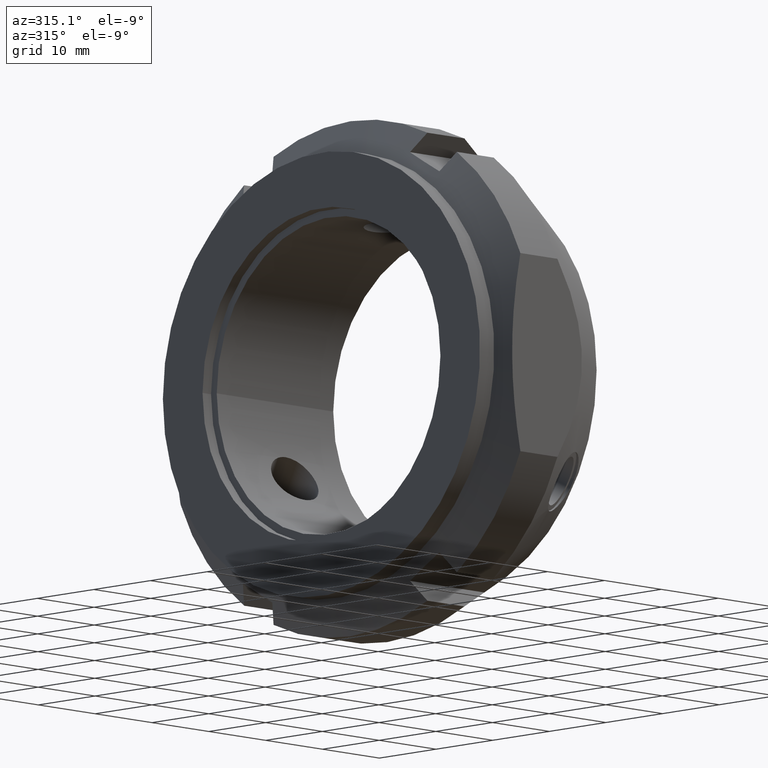
[diagram: clean part render]
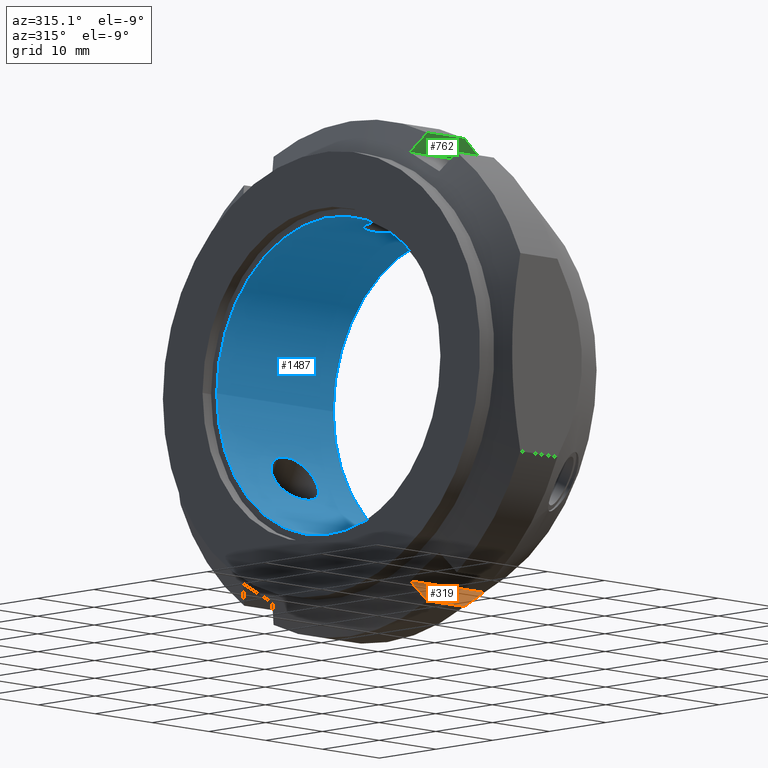
[diagram: same view with three faces highlighted in distinct colors, each labeled with its STEP entity id]
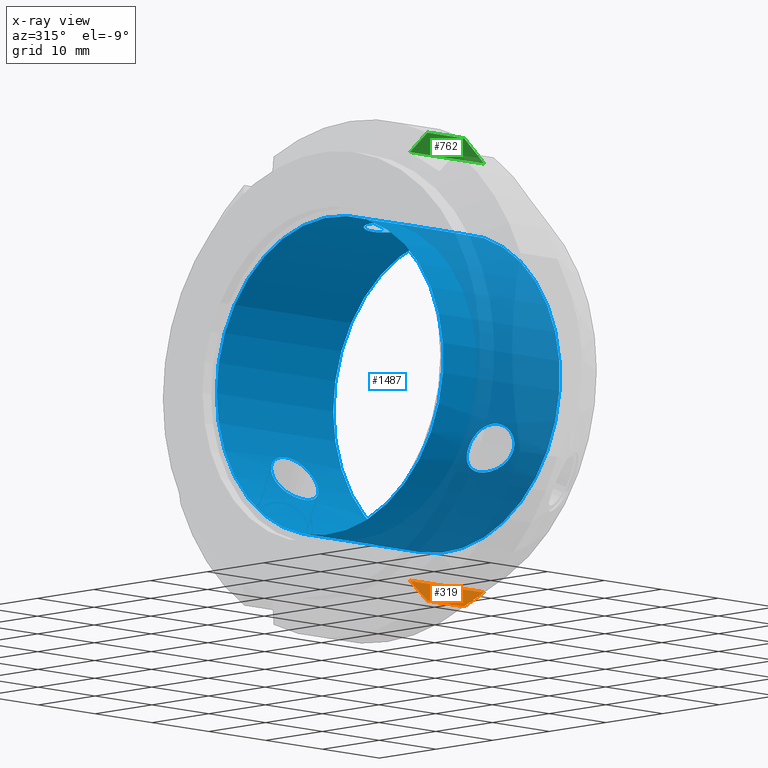
[diagram: x-ray of the same camera — body ghosted, the three highlighted faces saturated]
A machine part, auxiliary view with three faces highlighted in distinct colors.
The next image is the same camera in x-ray (body ghosted, the three faces saturated) — at least one of them is partly hidden behind the body in this view.
Their STEP definitions:

[orange] entity #319 — the highlighted planar face has unit normal (0, -0.866, 0.5).
#266=CARTESIAN_POINT('',(0.0,-12.151923788646686,-27.047749411640929));
#267=DIRECTION('',(0.0,-0.866025403784441,0.499999999999996));
#268=DIRECTION('',(0.0,-0.499999999999996,-0.866025403784441));
#269=AXIS2_PLACEMENT_3D('',#266,#267,#268);
#270=PLANE('',#269);
#271=CARTESIAN_POINT('',(5.098076211353304,-13.582544913931081,-29.525657887014884));
#272=VERTEX_POINT('',#271);
#273=CARTESIAN_POINT('',(3.453869250916735,-12.151923788646684,-27.047749411640929));
#274=VERTEX_POINT('',#273);
#275=CARTESIAN_POINT('',(5.098076211353303,-13.582544913931082,-29.525657887014887));
#276=CARTESIAN_POINT('',(4.237948321633014,-12.83445837849801,-28.229933999186624));
#277=CARTESIAN_POINT('',(3.453869250916735,-12.151923788646684,-27.047749411640929));
#285=(BOUNDED_CURVE()B_SPLINE_CURVE(2,(#275,#276,#277),.UNSPECIFIED.,.F.,.U.)B_SPLINE_CURVE_WITH_KNOTS((3,3),(0.0,0.319128761341054),.UNSPECIFIED.)CURVE()GEOMETRIC_REPRESENTATION_ITEM()RATIONAL_B_SPLINE_CURVE((1.0,1.001854182815459,1.001584615140668))REPRESENTATION_ITEM(''));
#286=EDGE_CURVE('',#272,#274,#285,.T.);
#287=ORIENTED_EDGE('',*,*,#286,.F.);
#288=CARTESIAN_POINT('',(11.607695154586731,-13.582544913931084,-29.525657887014884));
#289=VERTEX_POINT('',#288);
#290=CARTESIAN_POINT('',(11.607695154586729,-13.582544913931081,-29.525657887014884));
#291=DIRECTION('',(-1.0,0.0,0.0));
#292=VECTOR('',#291,6.509618943233425);
#293=LINE('',#290,#292);
#294=EDGE_CURVE('',#289,#272,#293,.T.);
#295=ORIENTED_EDGE('',*,*,#294,.F.);
#296=CARTESIAN_POINT('',(16.540316035896449,-12.151923788646686,-27.047749411640929));
#297=VERTEX_POINT('',#296);
#298=CARTESIAN_POINT('',(16.540316035896449,-12.151923788646684,-27.047749411640929));
#299=CARTESIAN_POINT('',(14.188078820549956,-12.834458379425392,-28.229934000792891));
#300=CARTESIAN_POINT('',(11.607695154586722,-13.582544913931088,-29.525657887014887));
#308=(BOUNDED_CURVE()B_SPLINE_CURVE(2,(#298,#299,#300),.UNSPECIFIED.,.F.,.U.)B_SPLINE_CURVE_WITH_KNOTS((3,3),(0.0,0.570240793537052),.UNSPECIFIED.)CURVE()GEOMETRIC_REPRESENTATION_ITEM()RATIONAL_B_SPLINE_CURVE((1.0,1.001061348164373,1.0))REPRESENTATION_ITEM(''));
#309=EDGE_CURVE('',#297,#289,#308,.T.);
#310=ORIENTED_EDGE('',*,*,#309,.F.);
#311=CARTESIAN_POINT('',(3.453869250916735,-12.151923788646686,-27.047749411640929));
#312=DIRECTION('',(1.0,0.0,0.0));
#313=VECTOR('',#312,13.086446784979714);
#314=LINE('',#311,#313);
#315=EDGE_CURVE('',#274,#297,#314,.T.);
#316=ORIENTED_EDGE('',*,*,#315,.F.);
#317=EDGE_LOOP('',(#287,#295,#310,#316));
#318=FACE_OUTER_BOUND('',#317,.T.);
#319=ADVANCED_FACE('',(#318),#270,.T.);

[blue] entity #1487 — the highlighted cylindrical surface (bore or boss wall) has radius 20 mm, axis along (1, 0, 0).
#1090=CARTESIAN_POINT('',(12.386459030357074,18.741438545535594,-6.982727349962374));
#1091=VERTEX_POINT('',#1090);
#1092=CARTESIAN_POINT('',(12.386459030357074,18.741438545535594,-6.982727349962374));
#1093=CARTESIAN_POINT('',(12.889296638505527,18.741438545535594,-6.982727349962374));
#1094=CARTESIAN_POINT('',(13.428609159729724,18.710219929245262,-7.068360306556945));
#1095=CARTESIAN_POINT('',(14.436777334736345,18.576621437185292,-7.412366916709265));
#1096=CARTESIAN_POINT('',(14.905761719550492,18.473745060439455,-7.670170053745653));
#1097=CARTESIAN_POINT('',(15.595693902359473,18.230825661591059,-8.228813412212139));
#1098=CARTESIAN_POINT('',(15.884711588988987,18.085031331994077,-8.54906202516019));
#1099=CARTESIAN_POINT('',(16.279814947180789,17.734785469584303,-9.253767084320288));
#1100=CARTESIAN_POINT('',(16.384652623095967,17.529279083858125,-9.638398006703303));
#1101=CARTESIAN_POINT('',(16.384652623095967,17.11173706751941,-10.361601993296714));
#1102=CARTESIAN_POINT('',(16.279814947180792,16.881390110517767,-10.731891205167013));
#1103=CARTESIAN_POINT('',(15.884711588988992,16.446220558314593,-11.387565549164318));
#1104=CARTESIAN_POINT('',(15.595693902359473,16.241774288773343,-11.673951448797052));
#1105=CARTESIAN_POINT('',(14.905761719550492,15.879434648110102,-12.163647498505048));
#1106=CARTESIAN_POINT('',(14.436777334736345,15.70760877063419,-12.381642622734439));
#1107=CARTESIAN_POINT('',(13.428609159729724,15.476489553202494,-12.669345615841825));
#1108=CARTESIAN_POINT('',(12.889296638505527,15.417938545535591,-12.739198208917539));
#1109=CARTESIAN_POINT('',(11.915817552964199,15.417938545535591,-12.739198208917539));
#1110=CARTESIAN_POINT('',(11.409231440393901,15.469833265094579,-12.677349219346263));
#1111=CARTESIAN_POINT('',(10.472206911972906,15.690359184847825,-12.403368602968037));
#1112=CARTESIAN_POINT('',(10.041982230447708,15.858811334325114,-12.190362647587133));
#1113=CARTESIAN_POINT('',(9.405921868370474,16.224982466791143,-11.697537127806134));
#1114=CARTESIAN_POINT('',(9.144193553685675,16.437294748474159,-11.400740296121938));
#1115=CARTESIAN_POINT('',(8.796011360560303,16.882054824168357,-10.731158493996533));
#1116=CARTESIAN_POINT('',(8.709358144489075,17.11380758316302,-10.358015755004109));
#1117=CARTESIAN_POINT('',(8.709358144489075,17.527208568214508,-9.641984244995911));
#1118=CARTESIAN_POINT('',(8.7960113605603,17.734483279922323,-9.254709098813184));
#1119=CARTESIAN_POINT('',(9.144193553685673,18.091978092627588,-8.534744673610215));
#1120=CARTESIAN_POINT('',(9.405921868370474,18.242855547787332,-8.202478428295194));
#1121=CARTESIAN_POINT('',(10.04198223044771,18.486569401317933,-7.638952165556598));
#1122=CARTESIAN_POINT('',(10.472206911972906,18.586811895096524,-7.386565347096715));
#1123=CARTESIAN_POINT('',(11.409231440393903,18.713823109147963,-7.058593990208363));
#1124=CARTESIAN_POINT('',(11.915817552964201,18.741438545535594,-6.982727349962374));
#1125=CARTESIAN_POINT('',(12.386459030357074,18.741438545535594,-6.982727349962374));
#1126=B_SPLINE_CURVE_WITH_KNOTS('',3,(#1092,#1093,#1094,#1095,#1096,#1097,#1098,#1099,#1100,#1101,#1102,#1103,#1104,#1105,#1106,#1107,#1108,#1109,#1110,#1111,#1112,#1113,#1114,#1115,#1116,#1117,#1118,#1119,#1120,#1121,#1122,#1123,#1124,#1125),.UNSPECIFIED.,.T.,.U.,(4,2,2,2,2,2,2,2,2,2,2,2,2,2,2,2,4),(0.0,0.150851282444537,0.301702564889073,0.426965169790688,0.552227774692303,0.677490379593918,0.802752984495533,0.953604266940069,1.104455549384606,1.245647992602468,1.38684043582033,1.510860731335776,1.634881026851223,1.758901322366669,1.882921617882115,2.024114061099977,2.165306504317839),.UNSPECIFIED.);
#1127=EDGE_CURVE('',#1091,#1091,#1126,.T.);
#1180=CARTESIAN_POINT('',(12.386459030357075,-15.417938545535602,-12.739198208917523));
#1181=VERTEX_POINT('',#1180);
#1182=CARTESIAN_POINT('',(12.386459030357075,-15.417938545535602,-12.739198208917523));
#1183=CARTESIAN_POINT('',(12.866973002792324,-15.417938545535602,-12.739198208917523));
#1184=CARTESIAN_POINT('',(13.383488680569851,-15.471450979508552,-12.675289476627398));
#1185=CARTESIAN_POINT('',(14.354800634682485,-15.684163737489463,-12.411114642057623));
#1186=CARTESIAN_POINT('',(14.809684674915253,-15.842748468261799,-12.210675948392604));
#1187=CARTESIAN_POINT('',(15.520434202872146,-16.192871789149358,-11.741770543603867));
#1188=CARTESIAN_POINT('',(15.835654181347179,-16.4043150338386,-11.448383554382961));
#1189=CARTESIAN_POINT('',(16.268414751051761,-16.85832403295084,-10.768655904385989));
#1190=CARTESIAN_POINT('',(16.384652623095967,-17.100432706439079,-10.381181721034952));
#1191=CARTESIAN_POINT('',(16.384652623095967,-17.54058344493847,-9.618818278965041));
#1192=CARTESIAN_POINT('',(16.268414751051765,-17.755091594286977,-9.215408925572156));
#1193=CARTESIAN_POINT('',(15.835654181347179,-18.116748507282935,-8.48236177379572));
#1194=CARTESIAN_POINT('',(15.520434202872146,-18.265107470743452,-8.152553057825775));
#1195=CARTESIAN_POINT('',(14.809684674915253,-18.496129802818544,-7.614884665085411));
#1196=CARTESIAN_POINT('',(14.354800634682483,-18.590422438047646,-7.377326912751742));
#1197=CARTESIAN_POINT('',(13.383488680569847,-18.71284817683517,-7.061024843346335));
#1198=CARTESIAN_POINT('',(12.866973002792321,-18.741438545535605,-6.982727349962358));
#1199=CARTESIAN_POINT('',(11.915817552964201,-18.741438545535605,-6.982727349962358));
#1200=CARTESIAN_POINT('',(11.409231440393908,-18.713823109147974,-7.058593990208349));
#1201=CARTESIAN_POINT('',(10.47220691197291,-18.586811895096535,-7.3865653470967));
#1202=CARTESIAN_POINT('',(10.041982230447712,-18.48656940131794,-7.638952165556587));
#1203=CARTESIAN_POINT('',(9.405921868370479,-18.242855547787343,-8.202478428295184));
#1204=CARTESIAN_POINT('',(9.144193553685675,-18.091978092627599,-8.534744673610202));
#1205=CARTESIAN_POINT('',(8.796011360560303,-17.734483279922333,-9.254709098813169));
#1206=CARTESIAN_POINT('',(8.709358144489078,-17.527208568214515,-9.641984244995896));
#1207=CARTESIAN_POINT('',(8.709358144489078,-17.11380758316303,-10.358015755004095));
#1208=CARTESIAN_POINT('',(8.796011360560305,-16.882054824168364,-10.731158493996521));
#1209=CARTESIAN_POINT('',(9.144193553685675,-16.437294748474166,-11.400740296121924));
#1210=CARTESIAN_POINT('',(9.405921868370475,-16.224982466791161,-11.697537127806122));
#1211=CARTESIAN_POINT('',(10.041982230447712,-15.858811334325127,-12.190362647587119));
#1212=CARTESIAN_POINT('',(10.47220691197291,-15.690359184847829,-12.403368602968023));
#1213=CARTESIAN_POINT('',(11.409231440393908,-15.469833265094586,-12.677349219346251));
#1214=CARTESIAN_POINT('',(11.915817552964205,-15.417938545535604,-12.739198208917525));
#1215=CARTESIAN_POINT('',(12.386459030357077,-15.417938545535604,-12.739198208917525));
#1216=B_SPLINE_CURVE_WITH_KNOTS('',3,(#1182,#1183,#1184,#1185,#1186,#1187,#1188,#1189,#1190,#1191,#1192,#1193,#1194,#1195,#1196,#1197,#1198,#1199,#1200,#1201,#1202,#1203,#1204,#1205,#1206,#1207,#1208,#1209,#1210,#1211,#1212,#1213,#1214,#1215),.UNSPECIFIED.,.T.,.U.,(4,2,2,2,2,2,2,2,2,2,2,2,2,2,2,2,4),(0.0,0.144154191730574,0.288308383461148,0.420353605010966,0.552398826560784,0.684444048110602,0.81648926966042,0.960643461390994,1.104797653121569,1.245990096339431,1.387182539557292,1.511202835072738,1.635223130588185,1.759243426103631,1.883263721619077,2.024456164836939,2.165648608054801),.UNSPECIFIED.);
#1217=EDGE_CURVE('',#1181,#1181,#1216,.T.);
#1270=CARTESIAN_POINT('',(12.386459030357077,-3.3235,19.721925558879892));
#1271=VERTEX_POINT('',#1270);
#1272=CARTESIAN_POINT('',(12.386459030357077,-3.3235,19.721925558879892));
#1273=CARTESIAN_POINT('',(12.889296638505535,-3.3235,19.721925558879892));
#1274=CARTESIAN_POINT('',(13.42860915972973,-3.233730376042766,19.737705922398749));
#1275=CARTESIAN_POINT('',(14.436777334736346,-2.869012666551101,19.794009539443685));
#1276=CARTESIAN_POINT('',(14.905761719550492,-2.59431041232935,19.833817552250686));
#1277=CARTESIAN_POINT('',(15.595693902359473,-1.989051372817718,19.902764861009175));
#1278=CARTESIAN_POINT('',(15.884711588988994,-1.638810773679486,19.93662757432449));
#1279=CARTESIAN_POINT('',(16.279814947180796,-0.853395359066537,19.985658289487283));
#1280=CARTESIAN_POINT('',(16.384652623095967,-0.417542016338717,20.0));
#1281=CARTESIAN_POINT('',(16.384652623095967,0.417542016338715,20.0));
#1282=CARTESIAN_POINT('',(16.279814947180792,0.853395359066536,19.985658289487283));
#1283=CARTESIAN_POINT('',(15.884711588988994,1.638810773679484,19.93662757432449));
#1284=CARTESIAN_POINT('',(15.595693902359478,1.989051372817718,19.902764861009175));
#1285=CARTESIAN_POINT('',(14.905761719550497,2.59431041232935,19.833817552250686));
#1286=CARTESIAN_POINT('',(14.436777334736355,2.869012666551098,19.794009539443685));
#1287=CARTESIAN_POINT('',(13.428609159729735,3.233730376042765,19.737705922398749));
#1288=CARTESIAN_POINT('',(12.889296638505529,3.3235,19.721925558879892));
#1289=CARTESIAN_POINT('',(11.915817552964203,3.3235,19.721925558879892));
#1290=CARTESIAN_POINT('',(11.409231440393908,3.243989844053385,19.735943209554602));
#1291=CARTESIAN_POINT('',(10.472206911972911,2.896452710248702,19.789933950064729));
#1292=CARTESIAN_POINT('',(10.041982230447712,2.627758066992814,19.829314813143711));
#1293=CARTESIAN_POINT('',(9.405921868370479,2.017873080996186,19.900015556101312));
#1294=CARTESIAN_POINT('',(9.144193553685676,1.654683344153436,19.935484969732137));
#1295=CARTESIAN_POINT('',(8.796011360560303,0.852428455753972,19.985867592809697));
#1296=CARTESIAN_POINT('',(8.709358144489078,0.413400985051489,20.0));
#1297=CARTESIAN_POINT('',(8.709358144489078,-0.424956374442003,20.0));
#1298=CARTESIAN_POINT('',(8.800869503254203,-0.875311390145532,19.985051255153088));
#1299=CARTESIAN_POINT('',(9.166929833970244,-1.694453928222677,19.932317222847967));
#1300=CARTESIAN_POINT('',(9.441722489366036,-2.063187815270791,19.895394173531166));
#1301=CARTESIAN_POINT('',(10.090091089384277,-2.659999834851888,19.824777491632869));
#1302=CARTESIAN_POINT('',(10.513919257798163,-2.916427529977741,19.786929458101493));
#1303=CARTESIAN_POINT('',(11.432659696983457,-3.247843413885173,19.735238545825734));
#1304=CARTESIAN_POINT('',(11.927360460823085,-3.3235,19.721925558879892));
#1305=CARTESIAN_POINT('',(12.386459030357077,-3.3235,19.721925558879892));
#1306=B_SPLINE_CURVE_WITH_KNOTS('',3,(#1272,#1273,#1274,#1275,#1276,#1277,#1278,#1279,#1280,#1281,#1282,#1283,#1284,#1285,#1286,#1287,#1288,#1289,#1290,#1291,#1292,#1293,#1294,#1295,#1296,#1297,#1298,#1299,#1300,#1301,#1302,#1303,#1304,#1305),.UNSPECIFIED.,.T.,.U.,(4,2,2,2,2,2,2,2,2,2,2,2,2,2,2,2,4),(0.0,0.150851282444537,0.301702564889073,0.426965169790688,0.552227774692303,0.677490379593918,0.802752984495532,0.953604266940069,1.104455549384606,1.245647992602468,1.38684043582033,1.510860731335776,1.634881026851222,1.762367939183823,1.889854851516424,2.027584422376623,2.165313993236822),.UNSPECIFIED.);
#1307=EDGE_CURVE('',#1271,#1271,#1306,.T.);
#1371=CARTESIAN_POINT('',(1.499999999999995,20.0,0.0));
#1372=VERTEX_POINT('',#1371);
#1373=CARTESIAN_POINT('',(1.499999999999995,0.0,0.0));
#1374=DIRECTION('',(1.0,0.0,0.0));
#1375=DIRECTION('',(0.0,1.0,0.0));
#1376=AXIS2_PLACEMENT_3D('',#1373,#1374,#1375);
#1377=CIRCLE('',#1376,20.0);
#1378=EDGE_CURVE('',#1372,#1372,#1377,.T.);
#1455=CARTESIAN_POINT('',(21.999999999999993,20.0,0.0));
#1456=VERTEX_POINT('',#1455);
#1457=CARTESIAN_POINT('',(21.999999999999993,0.0,0.0));
#1458=DIRECTION('',(1.0,0.0,0.0));
#1459=DIRECTION('',(0.0,1.0,0.0));
#1460=AXIS2_PLACEMENT_3D('',#1457,#1458,#1459);
#1461=CIRCLE('',#1460,20.0);
#1462=EDGE_CURVE('',#1456,#1456,#1461,.T.);
#1467=CARTESIAN_POINT('',(11.749999999999993,0.0,0.0));
#1468=DIRECTION('',(1.0,0.0,0.0));
#1469=DIRECTION('',(0.0,1.0,0.0));
#1470=AXIS2_PLACEMENT_3D('',#1467,#1468,#1469);
#1471=CYLINDRICAL_SURFACE('',#1470,20.0);
#1472=ORIENTED_EDGE('',*,*,#1127,.T.);
#1473=EDGE_LOOP('',(#1472));
#1474=FACE_OUTER_BOUND('',#1473,.T.);
#1475=ORIENTED_EDGE('',*,*,#1217,.T.);
#1476=EDGE_LOOP('',(#1475));
#1477=FACE_BOUND('',#1476,.T.);
#1478=ORIENTED_EDGE('',*,*,#1307,.T.);
#1479=EDGE_LOOP('',(#1478));
#1480=FACE_BOUND('',#1479,.T.);
#1481=ORIENTED_EDGE('',*,*,#1378,.F.);
#1482=EDGE_LOOP('',(#1481));
#1483=FACE_BOUND('',#1482,.T.);
#1484=ORIENTED_EDGE('',*,*,#1462,.T.);
#1485=EDGE_LOOP('',(#1484));
#1486=FACE_BOUND('',#1485,.T.);
#1487=ADVANCED_FACE('',(#1474,#1477,#1480,#1483,#1486),#1471,.F.);

[green] entity #762 — the highlighted planar face has unit normal (0, 0.866, 0.5).
#433=CARTESIAN_POINT('',(3.453869250916735,-12.151923788646684,27.047749411640929));
#434=VERTEX_POINT('',#433);
#448=CARTESIAN_POINT('',(5.098076211353302,-13.582544913931081,29.525657887014884));
#449=VERTEX_POINT('',#448);
#450=CARTESIAN_POINT('',(3.453869250916735,-12.151923788646684,27.047749411640929));
#451=CARTESIAN_POINT('',(4.237948321633013,-12.83445837849801,28.22993399918662));
#452=CARTESIAN_POINT('',(5.098076211353303,-13.582544913931082,29.525657887014887));
#460=(BOUNDED_CURVE()B_SPLINE_CURVE(2,(#450,#451,#452),.UNSPECIFIED.,.F.,.U.)B_SPLINE_CURVE_WITH_KNOTS((3,3),(0.238114726454729,0.557243487795783),.UNSPECIFIED.)CURVE()GEOMETRIC_REPRESENTATION_ITEM()RATIONAL_B_SPLINE_CURVE((1.001584615140668,1.001854182815459,1.0))REPRESENTATION_ITEM(''));
#461=EDGE_CURVE('',#434,#449,#460,.T.);
#708=CARTESIAN_POINT('',(16.540316035896449,-12.151923788646686,27.047749411640929));
#709=VERTEX_POINT('',#708);
#723=CARTESIAN_POINT('',(3.453869250916735,-12.151923788646686,27.047749411640929));
#724=DIRECTION('',(1.0,0.0,0.0));
#725=VECTOR('',#724,13.086446784979714);
#726=LINE('',#723,#725);
#727=EDGE_CURVE('',#434,#709,#726,.T.);
#732=CARTESIAN_POINT('',(0.0,-12.151923788646686,27.047749411640929));
#733=DIRECTION('',(0.0,0.866025403784441,0.499999999999996));
#734=DIRECTION('',(0.0,-0.499999999999996,0.866025403784441));
#735=AXIS2_PLACEMENT_3D('',#732,#733,#734);
#736=PLANE('',#735);
#737=ORIENTED_EDGE('',*,*,#461,.F.);
#738=ORIENTED_EDGE('',*,*,#727,.T.);
#739=CARTESIAN_POINT('',(11.607695154586731,-13.582544913931084,29.525657887014884));
#740=VERTEX_POINT('',#739);
#741=CARTESIAN_POINT('',(11.607695154586722,-13.582544913931088,29.525657887014887));
#742=CARTESIAN_POINT('',(14.188078823582666,-12.83445837854595,28.229933999269655));
#743=CARTESIAN_POINT('',(16.540316035896449,-12.151923788646686,27.047749411640929));
#751=(BOUNDED_CURVE()B_SPLINE_CURVE(2,(#741,#742,#743),.UNSPECIFIED.,.F.,.U.)B_SPLINE_CURVE_WITH_KNOTS((3,3),(0.0,0.539530756152027),.UNSPECIFIED.)CURVE()GEOMETRIC_REPRESENTATION_ITEM()RATIONAL_B_SPLINE_CURVE((1.0,1.002364907260734,1.002606049484388))REPRESENTATION_ITEM(''));
#752=EDGE_CURVE('',#740,#709,#751,.T.);
#753=ORIENTED_EDGE('',*,*,#752,.F.);
#754=CARTESIAN_POINT('',(5.098076211353301,-13.582544913931081,29.525657887014884));
#755=DIRECTION('',(1.0,0.0,0.0));
#756=VECTOR('',#755,6.509618943233428);
#757=LINE('',#754,#756);
#758=EDGE_CURVE('',#449,#740,#757,.T.);
#759=ORIENTED_EDGE('',*,*,#758,.F.);
#760=EDGE_LOOP('',(#737,#738,#753,#759));
#761=FACE_OUTER_BOUND('',#760,.T.);
#762=ADVANCED_FACE('',(#761),#736,.F.);